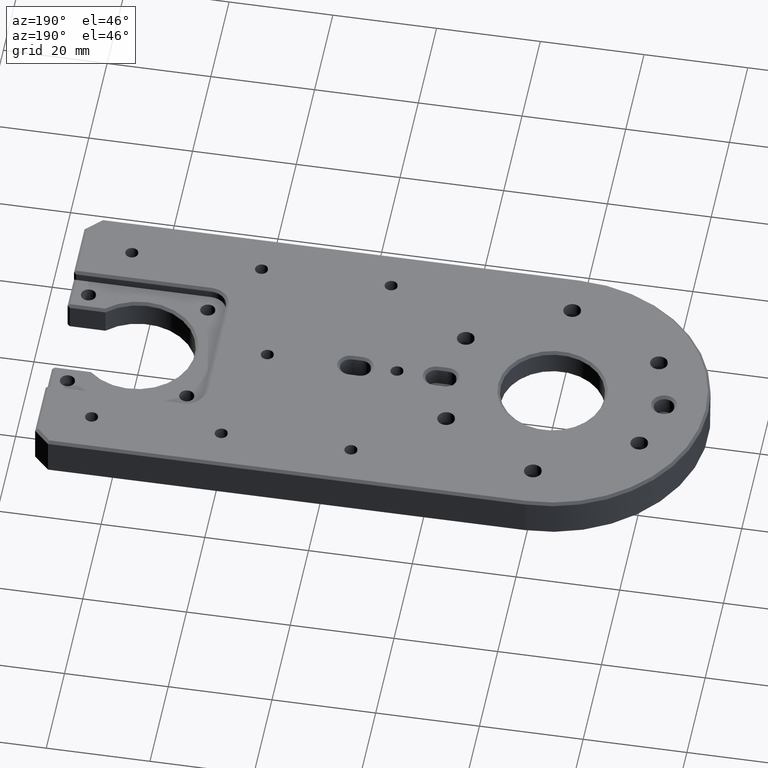
[diagram: clean part render]
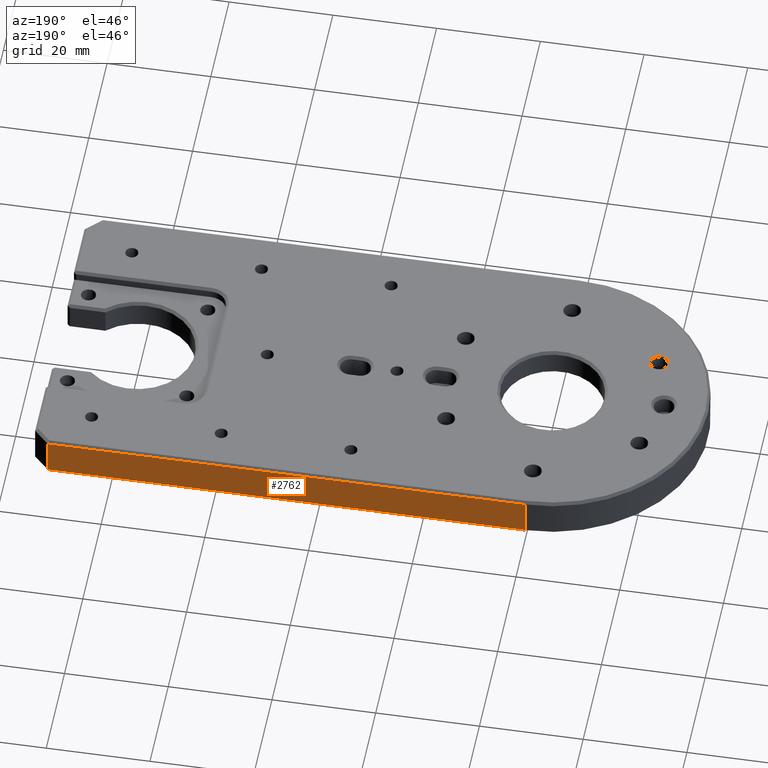
[diagram: same view with one face highlighted and labeled with its STEP entity id]
A machine part, auxiliary view. The second image highlights one B-rep face of the part: STEP entity #2762.
In plain terms, the highlighted planar face has unit normal (0, 1, 0).
Its self-contained STEP definition (entity closure, byte-faithful):
#80 = DIRECTION ( 'NONE',  ( 0.0000000000000000000, -0.0000000000000000000, 1.000000000000000000 ) ) ;
#97 = LINE ( 'NONE', #459, #743 ) ;
#150 = DIRECTION ( 'NONE',  ( 1.000000000000000000, 0.0000000000000000000, 0.0000000000000000000 ) ) ;
#261 = AXIS2_PLACEMENT_3D ( 'NONE', #3813, #1779, #80 ) ;
#411 = CARTESIAN_POINT ( 'NONE',  ( 1.836970198721029589E-15, 30.00000000000000000, -0.4999999999999865663 ) ) ;
#459 = CARTESIAN_POINT ( 'NONE',  ( 1.836970198721029589E-15, 30.00000000000000000, -0.4999999999999865663 ) ) ;
#656 = VECTOR ( 'NONE', #3798, 1000.000000000000000 ) ;
#731 = VERTEX_POINT ( 'NONE', #3575 ) ;
#743 = VECTOR ( 'NONE', #150, 1000.000000000000000 ) ;
#756 = ORIENTED_EDGE ( 'NONE', *, *, #3569, .T. ) ;
#824 = VERTEX_POINT ( 'NONE', #3401 ) ;
#944 = ORIENTED_EDGE ( 'NONE', *, *, #1767, .T. ) ;
#1185 = ORIENTED_EDGE ( 'NONE', *, *, #2600, .T. ) ;
#1713 = CARTESIAN_POINT ( 'NONE',  ( 1.836970198721029589E-15, 30.00000000000000000, -7.500000000000013323 ) ) ;
#1767 = EDGE_CURVE ( 'NONE', #3818, #3831, #2429, .T. ) ;
#1779 = DIRECTION ( 'NONE',  ( 0.0000000000000000000, 1.000000000000000000, 0.0000000000000000000 ) ) ;
#1853 = ORIENTED_EDGE ( 'NONE', *, *, #2461, .T. ) ;
#1911 = LINE ( 'NONE', #3468, #3845 ) ;
#2053 = LINE ( 'NONE', #1713, #2398 ) ;
#2398 = VECTOR ( 'NONE', #2400, 1000.000000000000000 ) ;
#2400 = DIRECTION ( 'NONE',  ( -1.000000000000000000, 0.0000000000000000000, 0.0000000000000000000 ) ) ;
#2413 = CARTESIAN_POINT ( 'NONE',  ( 1.836970198721029589E-15, 30.00000000000000000, -7.500000000000013323 ) ) ;
#2429 = LINE ( 'NONE', #2742, #656 ) ;
#2460 = FACE_OUTER_BOUND ( 'NONE', #2888, .T. ) ;
#2461 = EDGE_CURVE ( 'NONE', #824, #3818, #2053, .T. ) ;
#2600 = EDGE_CURVE ( 'NONE', #731, #824, #1911, .T. ) ;
#2742 = CARTESIAN_POINT ( 'NONE',  ( 1.836970198721029589E-15, 30.00000000000000000, -8.000000000000000000 ) ) ;
#2762 = ADVANCED_FACE ( 'NONE', ( #2460 ), #3403, .T. ) ;
#2888 = EDGE_LOOP ( 'NONE', ( #944, #756, #1185, #1853 ) ) ;
#3253 = DIRECTION ( 'NONE',  ( 0.0000000000000000000, 0.0000000000000000000, -1.000000000000000000 ) ) ;
#3401 = CARTESIAN_POINT ( 'NONE',  ( 92.00000000000005684, 30.00000000000000000, -7.500000000000013323 ) ) ;
#3403 = PLANE ( 'NONE',  #261 ) ;
#3468 = CARTESIAN_POINT ( 'NONE',  ( 92.00000000000005684, 30.00000000000000000, -8.000000000000000000 ) ) ;
#3569 = EDGE_CURVE ( 'NONE', #3831, #731, #97, .T. ) ;
#3575 = CARTESIAN_POINT ( 'NONE',  ( 92.00000000000005684, 30.00000000000000000, -0.4999999999999970024 ) ) ;
#3798 = DIRECTION ( 'NONE',  ( 0.0000000000000000000, 0.0000000000000000000, 1.000000000000000000 ) ) ;
#3813 = CARTESIAN_POINT ( 'NONE',  ( 1.836970198721029589E-15, 30.00000000000000000, -8.000000000000000000 ) ) ;
#3818 = VERTEX_POINT ( 'NONE', #2413 ) ;
#3831 = VERTEX_POINT ( 'NONE', #411 ) ;
#3845 = VECTOR ( 'NONE', #3253, 1000.000000000000000 ) ;